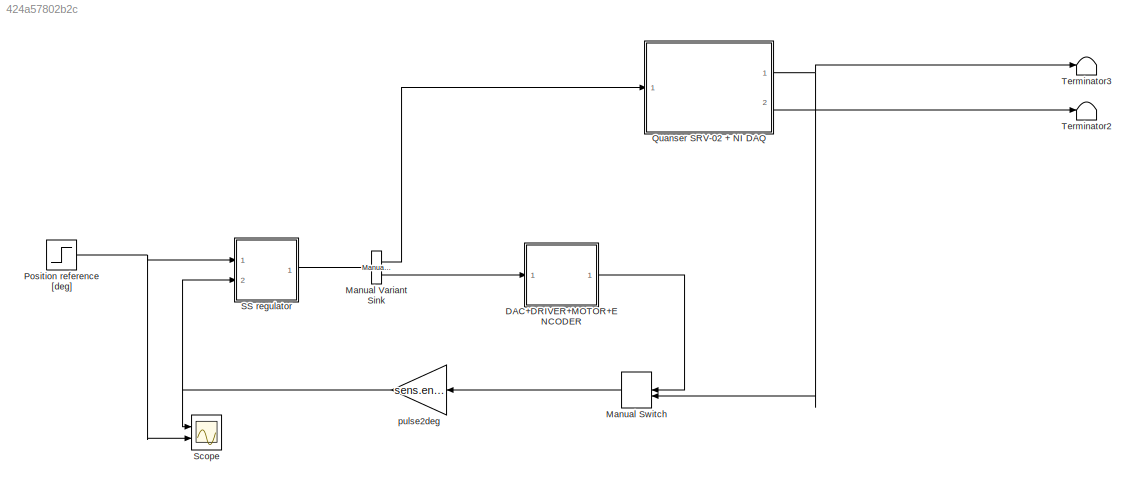
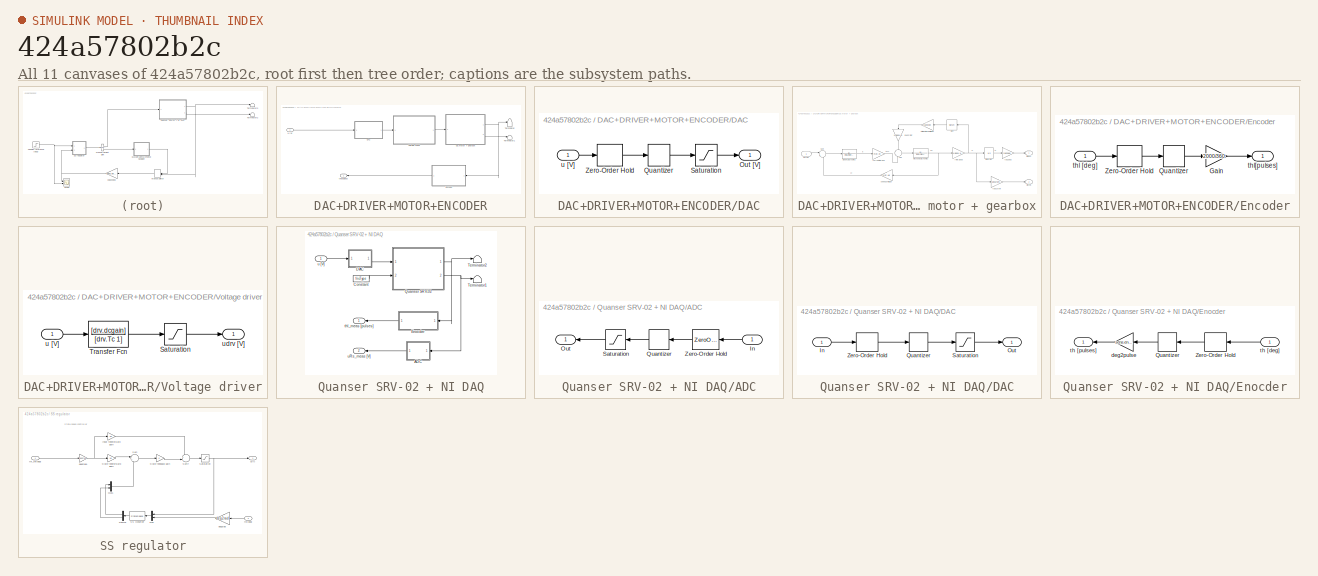
[diagram: thumbnail index - all 11 canvases of the model, root first then tree order]
MODEL slx_424a57802b2c
KIND model
CONFIG AbsTol = auto
CONFIG EnableMultiTasking = off
CONFIG FixedStep = 0.0001
CONFIG MaxStep = auto
CONFIG MinStep = auto
CONFIG RelTol = 1e-3
CONFIG SampleTimeConstraint = Unconstrained
CONFIG SolverName = FixedStepAuto
CONFIG StartTime = 0.0
CONFIG StopTime = 5
BLOCK [SubSystem] DAC+DRIVER+MOTOR+ENCODER
  Ports = [1, 1]
  RequestExecContextInheritance = off
BLOCK [SubSystem] DAC+DRIVER+MOTOR+ENCODER/DAC
  Ports = [1, 1]
  RequestExecContextInheritance = off
BLOCK [Outport] DAC+DRIVER+MOTOR+ENCODER/DAC/Out [V]
BLOCK [Quantizer] DAC+DRIVER+MOTOR+ENCODER/DAC/Quantizer
  QuantizationInterval = 20/(2^16-1)
BLOCK [Saturate] DAC+DRIVER+MOTOR+ENCODER/DAC/Saturation
  LowerLimit = -10
  UpperLimit = 10
BLOCK [ZeroOrderHold] DAC+DRIVER+MOTOR+ENCODER/DAC/Zero-Order Hold
  SampleTime = Ts
BLOCK [Inport] DAC+DRIVER+MOTOR+ENCODER/DAC/u [V]
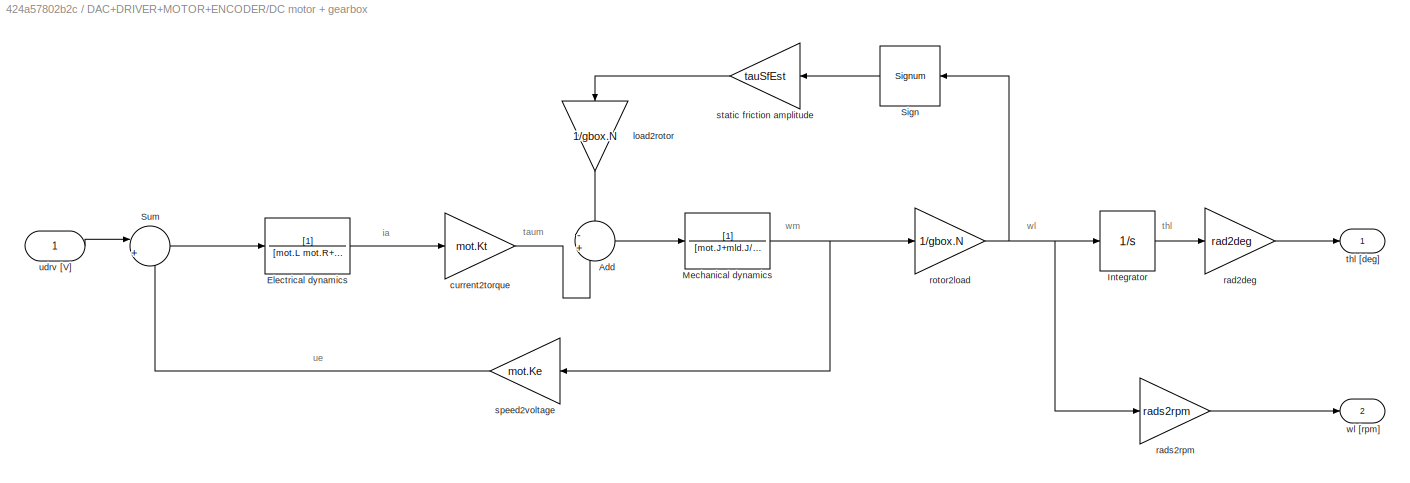
BLOCK [SubSystem] DAC+DRIVER+MOTOR+ENCODER/DC motor + gearbox
  Ports = [1, 2]
  RequestExecContextInheritance = off
BLOCK [Sum] DAC+DRIVER+MOTOR+ENCODER/DC motor + gearbox/Add
  Inputs = -+
  Ports = [2, 1]
BLOCK [TransferFcn] DAC+DRIVER+MOTOR+ENCODER/DC motor + gearbox/Electrical dynamics
  Denominator = [mot.L mot.R+sens.curr.Rs]
BLOCK [Integrator] DAC+DRIVER+MOTOR+ENCODER/DC motor + gearbox/Integrator
  Ports = [1, 1]
BLOCK [TransferFcn] DAC+DRIVER+MOTOR+ENCODER/DC motor + gearbox/Mechanical dynamics
  Denominator = [mot.J+mld.J/gbox.N^2 mot.B+mld.B/gbox.N^2]
BLOCK [Signum] DAC+DRIVER+MOTOR+ENCODER/DC motor + gearbox/Sign
  ZeroCross = off
BLOCK [Sum] DAC+DRIVER+MOTOR+ENCODER/DC motor + gearbox/Sum
  Inputs = |+-
  Ports = [2, 1]
BLOCK [Gain] DAC+DRIVER+MOTOR+ENCODER/DC motor + gearbox/current2torque
  Gain = mot.Kt
BLOCK [Gain] DAC+DRIVER+MOTOR+ENCODER/DC motor + gearbox/load2rotor
  Gain = 1/gbox.N
  NameLocation = left
BLOCK [Gain] DAC+DRIVER+MOTOR+ENCODER/DC motor + gearbox/rad2deg
  Gain = rad2deg
BLOCK [Gain] DAC+DRIVER+MOTOR+ENCODER/DC motor + gearbox/rads2rpm
  Gain = rads2rpm
BLOCK [Gain] DAC+DRIVER+MOTOR+ENCODER/DC motor + gearbox/rotor2load
  Gain = 1/gbox.N
BLOCK [Gain] DAC+DRIVER+MOTOR+ENCODER/DC motor + gearbox/speed2voltage
  Gain = mot.Ke
BLOCK [Gain] DAC+DRIVER+MOTOR+ENCODER/DC motor + gearbox/static friction amplitude
  Gain = tauSfEst
  NameLocation = top
BLOCK [Outport] DAC+DRIVER+MOTOR+ENCODER/DC motor + gearbox/thl [deg] 
BLOCK [Inport] DAC+DRIVER+MOTOR+ENCODER/DC motor + gearbox/udrv [V]
BLOCK [Outport] DAC+DRIVER+MOTOR+ENCODER/DC motor + gearbox/wl [rpm]
  Port = 2
BLOCK [SubSystem] DAC+DRIVER+MOTOR+ENCODER/Encoder
  Ports = [1, 1]
  RequestExecContextInheritance = off
BLOCK [Gain] DAC+DRIVER+MOTOR+ENCODER/Encoder/Gain
  Gain = 2000/360
BLOCK [Quantizer] DAC+DRIVER+MOTOR+ENCODER/Encoder/Quantizer
  QuantizationInterval = 360/(500*4)
BLOCK [ZeroOrderHold] DAC+DRIVER+MOTOR+ENCODER/Encoder/Zero-Order Hold
  SampleTime = Ts
BLOCK [Inport] DAC+DRIVER+MOTOR+ENCODER/Encoder/thl [deg] 
BLOCK [Outport] DAC+DRIVER+MOTOR+ENCODER/Encoder/thl[pulses]
BLOCK [Terminator] DAC+DRIVER+MOTOR+ENCODER/Terminator
BLOCK [Terminator] DAC+DRIVER+MOTOR+ENCODER/Terminator1
BLOCK [SubSystem] DAC+DRIVER+MOTOR+ENCODER/Voltage driver
  Ports = [1, 1]
  RequestExecContextInheritance = off
BLOCK [Saturate] DAC+DRIVER+MOTOR+ENCODER/Voltage driver/Saturation
  LowerLimit = -10
  UpperLimit = 10
BLOCK [TransferFcn] DAC+DRIVER+MOTOR+ENCODER/Voltage driver/Transfer Fcn
  Denominator = [drv.Tc 1]
  Numerator = [drv.dcgain]
BLOCK [Inport] DAC+DRIVER+MOTOR+ENCODER/Voltage driver/u [V]
BLOCK [Outport] DAC+DRIVER+MOTOR+ENCODER/Voltage driver/udrv [V]
BLOCK [Outport] DAC+DRIVER+MOTOR+ENCODER/thl[pulses]
BLOCK [Inport] DAC+DRIVER+MOTOR+ENCODER/u [V]
BLOCK [ManualSwitch] Manual Switch
  NameLocation = top
BLOCK [Reference] Manual Variant Sink  REF=simulink/Signal
Routing/Manual
Variant Sink
  Ports = [1, 2]
  SourceBlock = simulink/Signal\nRouting/Manual\nVariant Sink
  SourceProductBaseCode = SL
  SourceType = ManualVariantSink
BLOCK [Step] Position reference [deg]
  After = 120
  SampleTime = Ts
BLOCK [SubSystem] Quanser SRV-02 + NI DAQ
  Commented = on
  Ports = [1, 2]
  RequestExecContextInheritance = off
BLOCK [SubSystem] Quanser SRV-02 + NI DAQ/ADC
  Ports = [1, 1]
  RequestExecContextInheritance = off
BLOCK [Inport] Quanser SRV-02 + NI DAQ/ADC/In
BLOCK [Outport] Quanser SRV-02 + NI DAQ/ADC/Out
BLOCK [Quantizer] Quanser SRV-02 + NI DAQ/ADC/Quantizer
  QuantizationInterval = daq.adc.q
BLOCK [Saturate] Quanser SRV-02 + NI DAQ/ADC/Saturation
  LowerLimit = -daq.adc.fs
  UpperLimit = daq.adc.fs
BLOCK [ZeroOrderHold] Quanser SRV-02 + NI DAQ/ADC/Zero-Order Hold
  SampleTime = Ts
BLOCK [Constant] Quanser SRV-02 + NI DAQ/Constant
  Value = fricType
BLOCK [SubSystem] Quanser SRV-02 + NI DAQ/DAC
  Ports = [1, 1]
  RequestExecContextInheritance = off
BLOCK [Inport] Quanser SRV-02 + NI DAQ/DAC/In
BLOCK [Outport] Quanser SRV-02 + NI DAQ/DAC/Out
BLOCK [Quantizer] Quanser SRV-02 + NI DAQ/DAC/Quantizer
  QuantizationInterval = daq.dac.q
BLOCK [Saturate] Quanser SRV-02 + NI DAQ/DAC/Saturation
  LowerLimit = -daq.dac.fs
  UpperLimit = daq.dac.fs
BLOCK [ZeroOrderHold] Quanser SRV-02 + NI DAQ/DAC/Zero-Order Hold
  SampleTime = Ts
BLOCK [SubSystem] Quanser SRV-02 + NI DAQ/Enocder
  Ports = [1, 1]
  RequestExecContextInheritance = off
BLOCK [Quantizer] Quanser SRV-02 + NI DAQ/Enocder/Quantizer
  QuantizationInterval = sens.enc.pulse2deg
BLOCK [ZeroOrderHold] Quanser SRV-02 + NI DAQ/Enocder/Zero-Order Hold
  SampleTime = Ts
BLOCK [Gain] Quanser SRV-02 + NI DAQ/Enocder/deg2pulse
  Gain = sens.enc.deg2pulse
BLOCK [Inport] Quanser SRV-02 + NI DAQ/Enocder/th [deg]
BLOCK [Outport] Quanser SRV-02 + NI DAQ/Enocder/th [pulses]
BLOCK [ModelReference] Quanser SRV-02 + NI DAQ/Quanser SRV-02
  CopyOfModelProtected = on
  ModelNameDialog = SRV02IL_maci64.slxp
  ModelReferenceVersion = 1.44
  Ports = [2, 2]
BLOCK [Terminator] Quanser SRV-02 + NI DAQ/Terminator1
BLOCK [Terminator] Quanser SRV-02 + NI DAQ/Terminator2
BLOCK [Outport] Quanser SRV-02 + NI DAQ/thl_meas [pulses]
BLOCK [Inport] Quanser SRV-02 + NI DAQ/u [V]
BLOCK [Outport] Quanser SRV-02 + NI DAQ/uRs_meas [V]
  Port = 2
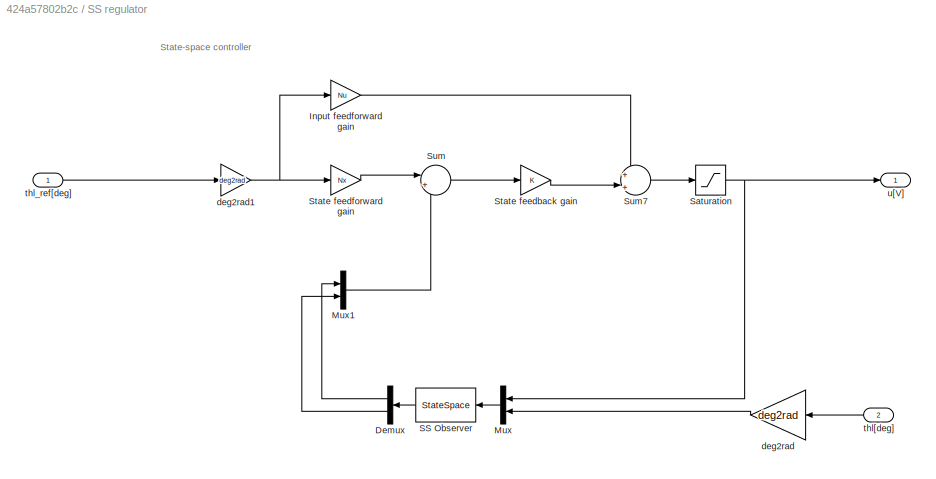
BLOCK [SubSystem] SS regulator
  Ports = [2, 1]
  RequestExecContextInheritance = off
BLOCK [Demux] SS regulator/Demux
  Outputs = 2
  Ports = [1, 2]
BLOCK [Gain] SS regulator/Input feedforward gain
  Gain = Nu
BLOCK [Mux] SS regulator/Mux
  DisplayOption = bar
  Inputs = 2
  Ports = [2, 1]
BLOCK [Mux] SS regulator/Mux1
  DisplayOption = bar
  Inputs = 2
  Ports = [2, 1]
BLOCK [StateSpace] SS regulator/SS Observer
  A = Ao
  B = Bo
  C = Co
  D = Do
  InitialCondition = 0
  Ports = [1, 1]
BLOCK [Saturate] SS regulator/Saturation
  LowerLimit = -12
  UpperLimit = 12
BLOCK [Gain] SS regulator/State feedback gain 
  Gain = K
  Multiplication = Matrix(K*u)
BLOCK [Gain] SS regulator/State feedforward gain
  Gain = Nx
BLOCK [Sum] SS regulator/Sum
  Inputs = |+-
  Ports = [2, 1]
BLOCK [Sum] SS regulator/Sum7
  Inputs = +|+||
  Ports = [2, 1]
BLOCK [Gain] SS regulator/deg2rad
  Gain = deg2rad
BLOCK [Gain] SS regulator/deg2rad1
  Gain = deg2rad
BLOCK [Inport] SS regulator/thl[deg]
  Port = 2
BLOCK [Inport] SS regulator/thl_ref[deg]
BLOCK [Outport] SS regulator/u[V]
BLOCK [Scope] Scope
  Floating = off
  NumInputPorts = 2
  Ports = [2]
  ScopeSpecificationString = Simulink.scopes.TimeScopeBlockCfg('CurrentConfiguration', extmgr.ConfigurationSet(extmgr.Configuration('Core','General UI',true),extmgr.Configuration('Core','Source UI',true),extmgr.Configuration('Sources','WiredSimulink',true,'DataLogging',true,'DataLoggingSaveFormat','StructureWithTime'),extmgr.Configuration('Visuals','Time Domain',true,'SerializedDisplays',{struct('MinYLimReal','-14.985','MaxYL...<+1512ch>
BLOCK [Terminator] Terminator2
BLOCK [Terminator] Terminator3
BLOCK [Gain] pulse2deg
  Gain = sens.enc.pulse2deg
ANNOTATION DAC+DRIVER+MOTOR+ENCODER/DC motor + gearbox: ia
ANNOTATION DAC+DRIVER+MOTOR+ENCODER/DC motor + gearbox: taum
ANNOTATION DAC+DRIVER+MOTOR+ENCODER/DC motor + gearbox: thl
ANNOTATION DAC+DRIVER+MOTOR+ENCODER/DC motor + gearbox: ue
ANNOTATION DAC+DRIVER+MOTOR+ENCODER/DC motor + gearbox: wl
ANNOTATION DAC+DRIVER+MOTOR+ENCODER/DC motor + gearbox: wm
ANNOTATION SS regulator: State-space controller
LINE DAC+DRIVER+MOTOR+ENCODER/DAC/Quantizer:1 -> DAC+DRIVER+MOTOR+ENCODER/DAC/Saturation:1
LINE DAC+DRIVER+MOTOR+ENCODER/DAC/Saturation:1 -> DAC+DRIVER+MOTOR+ENCODER/DAC/Out [V]:1
LINE DAC+DRIVER+MOTOR+ENCODER/DAC/Zero-Order Hold:1 -> DAC+DRIVER+MOTOR+ENCODER/DAC/Quantizer:1
LINE DAC+DRIVER+MOTOR+ENCODER/DAC/u [V]:1 -> DAC+DRIVER+MOTOR+ENCODER/DAC/Zero-Order Hold:1
LINE DAC+DRIVER+MOTOR+ENCODER/DAC:1 -> DAC+DRIVER+MOTOR+ENCODER/Voltage driver:1
LINE DAC+DRIVER+MOTOR+ENCODER/DC motor + gearbox/Add:1 -> DAC+DRIVER+MOTOR+ENCODER/DC motor + gearbox/Mechanical dynamics:1
LINE DAC+DRIVER+MOTOR+ENCODER/DC motor + gearbox/Electrical dynamics:1 -> DAC+DRIVER+MOTOR+ENCODER/DC motor + gearbox/current2torque:1
LINE DAC+DRIVER+MOTOR+ENCODER/DC motor + gearbox/Integrator:1 -> DAC+DRIVER+MOTOR+ENCODER/DC motor + gearbox/rad2deg:1
NET DAC+DRIVER+MOTOR+ENCODER/DC motor + gearbox/Mechanical dynamics:1 -> DAC+DRIVER+MOTOR+ENCODER/DC motor + gearbox/rotor2load:1, DAC+DRIVER+MOTOR+ENCODER/DC motor + gearbox/speed2voltage:1
LINE DAC+DRIVER+MOTOR+ENCODER/DC motor + gearbox/Sign:1 -> DAC+DRIVER+MOTOR+ENCODER/DC motor + gearbox/static friction amplitude:1
LINE DAC+DRIVER+MOTOR+ENCODER/DC motor + gearbox/Sum:1 -> DAC+DRIVER+MOTOR+ENCODER/DC motor + gearbox/Electrical dynamics:1
LINE DAC+DRIVER+MOTOR+ENCODER/DC motor + gearbox/current2torque:1 -> DAC+DRIVER+MOTOR+ENCODER/DC motor + gearbox/Add:2
LINE DAC+DRIVER+MOTOR+ENCODER/DC motor + gearbox/load2rotor:1 -> DAC+DRIVER+MOTOR+ENCODER/DC motor + gearbox/Add:1
LINE DAC+DRIVER+MOTOR+ENCODER/DC motor + gearbox/rad2deg:1 -> DAC+DRIVER+MOTOR+ENCODER/DC motor + gearbox/thl [deg] :1
LINE DAC+DRIVER+MOTOR+ENCODER/DC motor + gearbox/rads2rpm:1 -> DAC+DRIVER+MOTOR+ENCODER/DC motor + gearbox/wl [rpm]:1
NET DAC+DRIVER+MOTOR+ENCODER/DC motor + gearbox/rotor2load:1 -> DAC+DRIVER+MOTOR+ENCODER/DC motor + gearbox/Integrator:1, DAC+DRIVER+MOTOR+ENCODER/DC motor + gearbox/Sign:1, DAC+DRIVER+MOTOR+ENCODER/DC motor + gearbox/rads2rpm:1
LINE DAC+DRIVER+MOTOR+ENCODER/DC motor + gearbox/speed2voltage:1 -> DAC+DRIVER+MOTOR+ENCODER/DC motor + gearbox/Sum:2
LINE DAC+DRIVER+MOTOR+ENCODER/DC motor + gearbox/static friction amplitude:1 -> DAC+DRIVER+MOTOR+ENCODER/DC motor + gearbox/load2rotor:1
LINE DAC+DRIVER+MOTOR+ENCODER/DC motor + gearbox/udrv [V]:1 -> DAC+DRIVER+MOTOR+ENCODER/DC motor + gearbox/Sum:1
NET DAC+DRIVER+MOTOR+ENCODER/DC motor + gearbox:1 -> DAC+DRIVER+MOTOR+ENCODER/Encoder:1, DAC+DRIVER+MOTOR+ENCODER/Terminator:1
LINE DAC+DRIVER+MOTOR+ENCODER/DC motor + gearbox:2 -> DAC+DRIVER+MOTOR+ENCODER/Terminator1:1
LINE DAC+DRIVER+MOTOR+ENCODER/Encoder/Gain:1 -> DAC+DRIVER+MOTOR+ENCODER/Encoder/thl[pulses]:1
LINE DAC+DRIVER+MOTOR+ENCODER/Encoder/Quantizer:1 -> DAC+DRIVER+MOTOR+ENCODER/Encoder/Gain:1
LINE DAC+DRIVER+MOTOR+ENCODER/Encoder/Zero-Order Hold:1 -> DAC+DRIVER+MOTOR+ENCODER/Encoder/Quantizer:1
LINE DAC+DRIVER+MOTOR+ENCODER/Encoder/thl [deg] :1 -> DAC+DRIVER+MOTOR+ENCODER/Encoder/Zero-Order Hold:1
LINE DAC+DRIVER+MOTOR+ENCODER/Encoder:1 -> DAC+DRIVER+MOTOR+ENCODER/thl[pulses]:1
LINE DAC+DRIVER+MOTOR+ENCODER/Voltage driver/Saturation:1 -> DAC+DRIVER+MOTOR+ENCODER/Voltage driver/udrv [V]:1
LINE DAC+DRIVER+MOTOR+ENCODER/Voltage driver/Transfer Fcn:1 -> DAC+DRIVER+MOTOR+ENCODER/Voltage driver/Saturation:1
LINE DAC+DRIVER+MOTOR+ENCODER/Voltage driver/u [V]:1 -> DAC+DRIVER+MOTOR+ENCODER/Voltage driver/Transfer Fcn:1
LINE DAC+DRIVER+MOTOR+ENCODER/Voltage driver:1 -> DAC+DRIVER+MOTOR+ENCODER/DC motor + gearbox:1
LINE DAC+DRIVER+MOTOR+ENCODER/u [V]:1 -> DAC+DRIVER+MOTOR+ENCODER/DAC:1
LINE DAC+DRIVER+MOTOR+ENCODER:1 -> Manual Switch:1
LINE Manual Switch:1 -> pulse2deg:1
LINE Manual Variant Sink:1 -> Quanser SRV-02 + NI DAQ:1
LINE Manual Variant Sink:2 -> DAC+DRIVER+MOTOR+ENCODER:1
NET Position reference [deg]:1 -> SS regulator:1, Scope:2
LINE Quanser SRV-02 + NI DAQ/ADC/In:1 -> Quanser SRV-02 + NI DAQ/ADC/Zero-Order Hold:1
LINE Quanser SRV-02 + NI DAQ/ADC/Quantizer:1 -> Quanser SRV-02 + NI DAQ/ADC/Saturation:1
LINE Quanser SRV-02 + NI DAQ/ADC/Saturation:1 -> Quanser SRV-02 + NI DAQ/ADC/Out:1
LINE Quanser SRV-02 + NI DAQ/ADC/Zero-Order Hold:1 -> Quanser SRV-02 + NI DAQ/ADC/Quantizer:1
LINE Quanser SRV-02 + NI DAQ/ADC:1 -> Quanser SRV-02 + NI DAQ/uRs_meas [V]:1
LINE Quanser SRV-02 + NI DAQ/Constant:1 -> Quanser SRV-02 + NI DAQ/Quanser SRV-02:2
LINE Quanser SRV-02 + NI DAQ/DAC/In:1 -> Quanser SRV-02 + NI DAQ/DAC/Zero-Order Hold:1
LINE Quanser SRV-02 + NI DAQ/DAC/Quantizer:1 -> Quanser SRV-02 + NI DAQ/DAC/Saturation:1
LINE Quanser SRV-02 + NI DAQ/DAC/Saturation:1 -> Quanser SRV-02 + NI DAQ/DAC/Out:1
LINE Quanser SRV-02 + NI DAQ/DAC/Zero-Order Hold:1 -> Quanser SRV-02 + NI DAQ/DAC/Quantizer:1
LINE Quanser SRV-02 + NI DAQ/DAC:1 -> Quanser SRV-02 + NI DAQ/Quanser SRV-02:1
LINE Quanser SRV-02 + NI DAQ/Enocder/Quantizer:1 -> Quanser SRV-02 + NI DAQ/Enocder/deg2pulse:1
LINE Quanser SRV-02 + NI DAQ/Enocder/Zero-Order Hold:1 -> Quanser SRV-02 + NI DAQ/Enocder/Quantizer:1
LINE Quanser SRV-02 + NI DAQ/Enocder/deg2pulse:1 -> Quanser SRV-02 + NI DAQ/Enocder/th [pulses]:1
LINE Quanser SRV-02 + NI DAQ/Enocder/th [deg]:1 -> Quanser SRV-02 + NI DAQ/Enocder/Zero-Order Hold:1
LINE Quanser SRV-02 + NI DAQ/Enocder:1 -> Quanser SRV-02 + NI DAQ/thl_meas [pulses]:1
NET Quanser SRV-02 + NI DAQ/Quanser SRV-02:1 -> Quanser SRV-02 + NI DAQ/Enocder:1, Quanser SRV-02 + NI DAQ/Terminator2:1
NET Quanser SRV-02 + NI DAQ/Quanser SRV-02:2 -> Quanser SRV-02 + NI DAQ/ADC:1, Quanser SRV-02 + NI DAQ/Terminator1:1
LINE Quanser SRV-02 + NI DAQ/u [V]:1 -> Quanser SRV-02 + NI DAQ/DAC:1
NET Quanser SRV-02 + NI DAQ:1 -> Manual Switch:2, Terminator3:1
LINE Quanser SRV-02 + NI DAQ:2 -> Terminator2:1
LINE SS regulator/Demux:1 -> SS regulator/Mux1:1
LINE SS regulator/Demux:2 -> SS regulator/Mux1:2
LINE SS regulator/Input feedforward gain:1 -> SS regulator/Sum7:1
LINE SS regulator/Mux1:1 -> SS regulator/Sum:2
LINE SS regulator/Mux:1 -> SS regulator/SS Observer:1
LINE SS regulator/SS Observer:1 -> SS regulator/Demux:1
NET SS regulator/Saturation:1 -> SS regulator/Mux:1, SS regulator/u[V]:1
LINE SS regulator/State feedback gain :1 -> SS regulator/Sum7:2
LINE SS regulator/State feedforward gain:1 -> SS regulator/Sum:1
LINE SS regulator/Sum7:1 -> SS regulator/Saturation:1
LINE SS regulator/Sum:1 -> SS regulator/State feedback gain :1
NET SS regulator/deg2rad1:1 -> SS regulator/Input feedforward gain:1, SS regulator/State feedforward gain:1
LINE SS regulator/deg2rad:1 -> SS regulator/Mux:2
LINE SS regulator/thl[deg]:1 -> SS regulator/deg2rad:1
LINE SS regulator/thl_ref[deg]:1 -> SS regulator/deg2rad1:1
LINE SS regulator:1 -> Manual Variant Sink:1
NET pulse2deg:1 -> SS regulator:2, Scope:1
note: NET lines group one-source signal fan-out (src -> all destinations, sorted); 1:1 wires keep LINE
